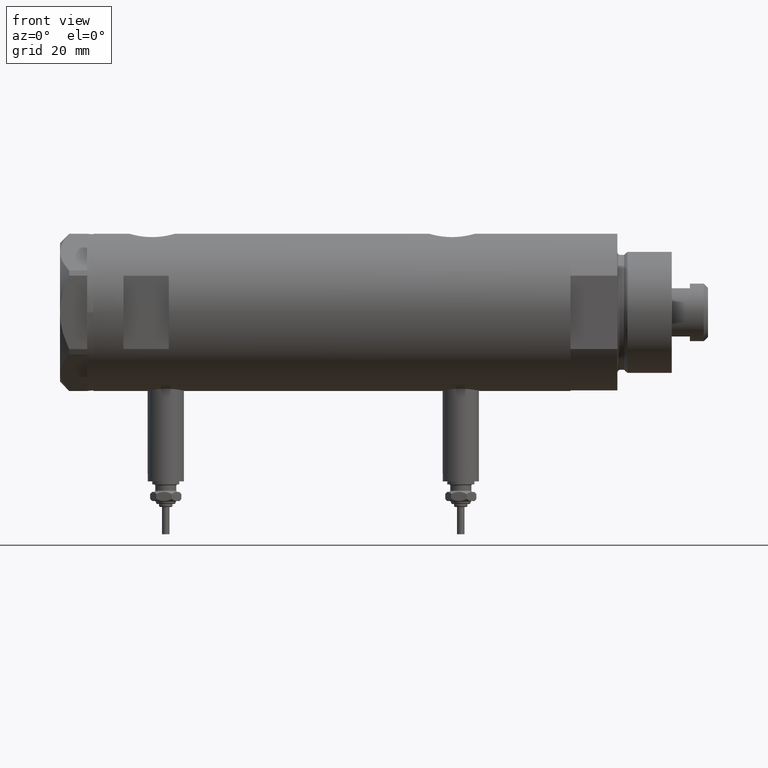
[diagram: clean part render]
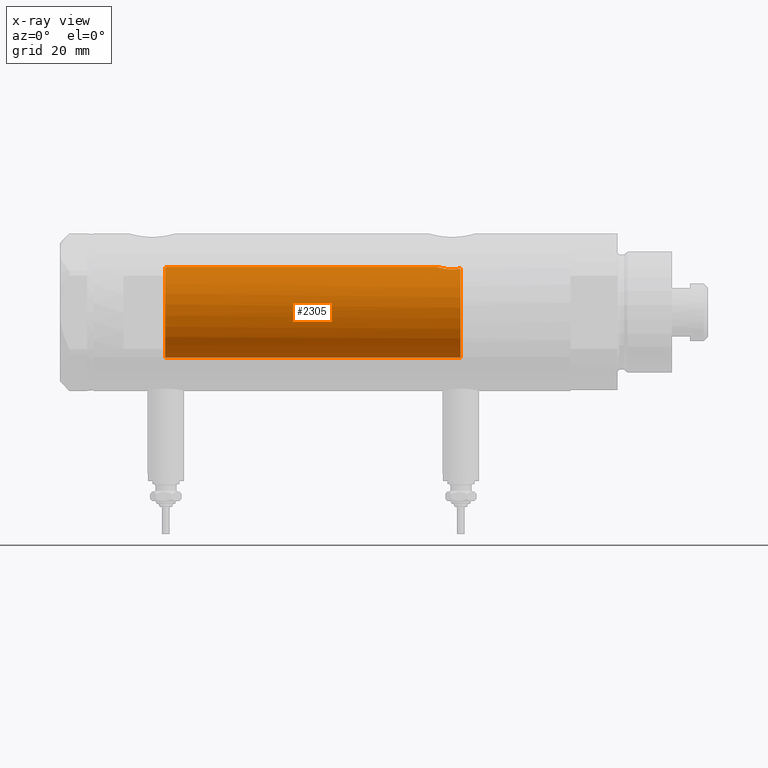
[diagram: x-ray — body ghosted, one internal face saturated and labeled with its STEP entity id]
A machine part, front view, then the same camera in x-ray: the body is ghosted and one INTERNAL B-rep face — a face not visible from any outside direction — is saturated and labeled: STEP entity #2305.
In plain terms, the highlighted cylindrical surface (partial cylindrical patch) has radius 15 mm, axis along (1, 0, -0).
Its self-contained STEP definition (entity closure, byte-faithful):
#74 = VECTOR ( 'NONE', #2897, 1000.000000000000000 ) ;
#135 = CARTESIAN_POINT ( 'NONE',  ( 14.20926245015526135, -4.806160851464706063, -38.96377327795616452 ) ) ;
#137 = CARTESIAN_POINT ( 'NONE',  ( 15.00000000000000000, 5.959273468635536151E-16, -34.88499999999999801 ) ) ;
#225 = DIRECTION ( 'NONE',  ( -0.000000000000000000, -0.000000000000000000, -1.000000000000000000 ) ) ;
#428 = EDGE_CURVE ( 'NONE', #4670, #3200, #2181, .T. ) ;
#495 = CARTESIAN_POINT ( 'NONE',  ( 14.23984499268011028, -4.714778477509579346, -38.53008258614764969 ) ) ;
#582 = ORIENTED_EDGE ( 'NONE', *, *, #6009, .F. ) ;
#586 = EDGE_CURVE ( 'NONE', #4252, #4744, #3920, .T. ) ;
#615 = ORIENTED_EDGE ( 'NONE', *, *, #2946, .T. ) ;
#619 = CARTESIAN_POINT ( 'NONE',  ( 14.39424372609267877, -4.221002267729138779, -42.17893131093288872 ) ) ;
#754 = AXIS2_PLACEMENT_3D ( 'NONE', #5443, #4474, #4569 ) ;
#765 = CARTESIAN_POINT ( 'NONE',  ( 14.87720562886504183, -1.924385875533401347, 54.97741675737692191 ) ) ;
#1026 = CARTESIAN_POINT ( 'NONE',  ( -15.00000000000000000, 0.000000000000000000, -42.55000000000000426 ) ) ;
#1114 = VERTEX_POINT ( 'NONE', #1026 ) ;
#1271 = CARTESIAN_POINT ( 'NONE',  ( 15.00000000000000000, 0.000000000000000000, 54.58500000000000085 ) ) ;
#1339 = CARTESIAN_POINT ( 'NONE',  ( 14.98404828787190723, -0.7909490205761879889, 54.63356230794191504 ) ) ;
#1573 = CARTESIAN_POINT ( 'NONE',  ( 14.23846660849503465, -4.718934182878722794, -40.95401121469808459 ) ) ;
#1609 = CARTESIAN_POINT ( 'NONE',  ( 14.19797987272029438, -4.839174951492910104, -40.29741451501411120 ) ) ;
#1727 = CARTESIAN_POINT ( 'NONE',  ( 14.85289483991917514, -2.102865829523695940, 55.05860377881607093 ) ) ;
#1831 = ORIENTED_EDGE ( 'NONE', *, *, #3499, .F. ) ;
#1858 = CARTESIAN_POINT ( 'NONE',  ( 14.92029983160078288, -1.555365312915176768, 54.83609703141411984 ) ) ;
#1872 = DIRECTION ( 'NONE',  ( -0.000000000000000000, -0.000000000000000000, -1.000000000000000000 ) ) ;
#1934 = CARTESIAN_POINT ( 'NONE',  ( 15.00000000000000000, 1.836970198721029589E-15, 78.95000000000000284 ) ) ;
#1991 = AXIS2_PLACEMENT_3D ( 'NONE', #2651, #225, #2175 ) ;
#2061 = CARTESIAN_POINT ( 'NONE',  ( -15.00000000000000000, 0.000000000000000000, 55.15000000000000568 ) ) ;
#2175 = DIRECTION ( 'NONE',  ( -1.000000000000000000, 0.000000000000000000, 0.000000000000000000 ) ) ;
#2181 = CIRCLE ( 'NONE', #754, 15.00000000000000000 ) ;
#2196 = CARTESIAN_POINT ( 'NONE',  ( 14.82638779339053947, -2.275571356824482638, 55.15000000000000568 ) ) ;
#2222 = CARTESIAN_POINT ( 'NONE',  ( 14.96064712090283777, -1.106639041422191827, -35.00738179736369915 ) ) ;
#2253 = CARTESIAN_POINT ( 'NONE',  ( 14.33594561531104006, -4.414979644548145288, -37.69453393419243525 ) ) ;
#2305 = ADVANCED_FACE ( 'NONE', ( #4077 ), #5093, .F. ) ;
#2446 = CARTESIAN_POINT ( 'NONE',  ( 14.25977760983849052, -4.654557688538888627, -38.31736805897653397 ) ) ;
#2537 = VERTEX_POINT ( 'NONE', #5942 ) ;
#2568 = CARTESIAN_POINT ( 'NONE',  ( 14.25856516724843992, -4.658255869285516937, -41.17044016644936733 ) ) ;
#2651 = CARTESIAN_POINT ( 'NONE',  ( 0.000000000000000000, 0.000000000000000000, 78.95000000000000284 ) ) ;
#2661 = CARTESIAN_POINT ( 'NONE',  ( 14.90017778876744892, -1.739641523727902372, -35.20130925695126223 ) ) ;
#2897 = DIRECTION ( 'NONE',  ( -0.000000000000000000, -0.000000000000000000, -1.000000000000000000 ) ) ;
#2946 = EDGE_CURVE ( 'NONE', #2537, #1114, #3745, .T. ) ;
#3045 = CARTESIAN_POINT ( 'NONE',  ( 14.19858338301463441, -4.837406781463696070, -39.18614104090498529 ) ) ;
#3117 = AXIS2_PLACEMENT_3D ( 'NONE', #6122, #3902, #5870 ) ;
#3200 = VERTEX_POINT ( 'NONE', #2196 ) ;
#3432 = EDGE_LOOP ( 'NONE', ( #582, #6090, #1831, #615, #6013, #5638 ) ) ;
#3499 = EDGE_CURVE ( 'NONE', #2537, #4744, #5018, .T. ) ;
#3530 = CARTESIAN_POINT ( 'NONE',  ( 14.20819413761015504, -4.809312895991456394, -40.51713251522166814 ) ) ;
#3598 = CARTESIAN_POINT ( 'NONE',  ( 14.92307637240703677, -1.532123959568890026, -35.12726557582075770 ) ) ;
#3669 = CARTESIAN_POINT ( 'NONE',  ( 14.49994286062941562, -3.853373987417223479, -36.74743896782912600 ) ) ;
#3745 = CIRCLE ( 'NONE', #3117, 15.00000000000000000 ) ;
#3902 = DIRECTION ( 'NONE',  ( 0.000000000000000000, 0.000000000000000000, -1.000000000000000000 ) ) ;
#3906 = LINE ( 'NONE', #6180, #74 ) ;
#3920 = LINE ( 'NONE', #1934, #4852 ) ;
#4077 = FACE_OUTER_BOUND ( 'NONE', #3432, .T. ) ;
#4116 = EDGE_CURVE ( 'NONE', #4670, #1114, #3906, .T. ) ;
#4158 = CARTESIAN_POINT ( 'NONE',  ( 14.30772250772359833, -4.505024017690383076, -37.90010806953218037 ) ) ;
#4192 = CARTESIAN_POINT ( 'NONE',  ( 14.81710879718117546, -2.343063746046468054, -35.48067662538952050 ) ) ;
#4220 = CARTESIAN_POINT ( 'NONE',  ( 14.97537530859971966, -0.8874117095427771496, -34.96137464055828303 ) ) ;
#4252 = VERTEX_POINT ( 'NONE', #4865 ) ;
#4474 = DIRECTION ( 'NONE',  ( 0.000000000000000000, 0.000000000000000000, 1.000000000000000000 ) ) ;
#4569 = DIRECTION ( 'NONE',  ( 1.000000000000000000, 0.000000000000000000, 0.000000000000000000 ) ) ;
#4571 = CARTESIAN_POINT ( 'NONE',  ( 14.42796883436190214, -4.108435602805831088, -37.10726922759031510 ) ) ;
#4605 = CARTESIAN_POINT ( 'NONE',  ( 15.00000000000000000, 5.959273468635536151E-16, -34.88499999999999801 ) ) ;
#4636 = CARTESIAN_POINT ( 'NONE',  ( 14.84733308118440220, -2.144376633039216440, -35.37751912952715827 ) ) ;
#4670 = VERTEX_POINT ( 'NONE', #2061 ) ;
#4743 = CARTESIAN_POINT ( 'NONE',  ( 14.82638779339053947, -2.275571356824482638, 55.15000000000000568 ) ) ;
#4744 = VERTEX_POINT ( 'NONE', #137 ) ;
#4852 = VECTOR ( 'NONE', #1872, 1000.000000000000000 ) ;
#4865 = CARTESIAN_POINT ( 'NONE',  ( 15.00000000000000000, 0.000000000000000000, 54.58500000000000085 ) ) ;
#4914 = CARTESIAN_POINT ( 'NONE',  ( 14.46277203719950855, -3.978470183374506863, -42.55000000000000426 ) ) ;
#5018 = B_SPLINE_CURVE_WITH_KNOTS ( 'NONE', 3,
 ( #4914, #5959, #619, #5866, #5388, #2568, #1573, #3530, #1609, #5481, #5513, #3045, #135, #495, #2446, #4158, #2253, #4571, #3669, #6086, #5036, #4192, #4636, #2661, #3598, #2222, #4220, #6151, #5167, #4605 ),
 .UNSPECIFIED., .F., .F.,
 ( 4, 2, 2, 2, 2, 2, 2, 2, 2, 2, 2, 2, 2, 2, 4 ),
 ( 0.004672505804584289359, 0.005337629501999303222, 0.006002753199414317953, 0.006667876896829330949, 0.007333000594244345680, 0.007998124291659358676, 0.008663247989074373406, 0.009328371686489388137, 0.009993495383904402868, 0.01132374277873441151, 0.01265399017356442016, 0.01331911387097942448, 0.01398423756839442880, 0.01464936126580943312, 0.01531448496322443745 ),
 .UNSPECIFIED. ) ;
#5036 = CARTESIAN_POINT ( 'NONE',  ( 14.72015646623405871, -2.909233045280601893, -35.82572079632733164 ) ) ;
#5093 = CYLINDRICAL_SURFACE ( 'NONE', #1991, 15.00000000000000000 ) ;
#5147 = CARTESIAN_POINT ( 'NONE',  ( 14.93900636919599911, -1.364886281976677607, 54.77622504971313333 ) ) ;
#5167 = CARTESIAN_POINT ( 'NONE',  ( 15.00000000000000000, -0.2216692655473431750, -34.88499999999999091 ) ) ;
#5179 = CARTESIAN_POINT ( 'NONE',  ( 15.00000000000000178, -0.3999014018875943210, 54.58500000000000796 ) ) ;
#5388 = CARTESIAN_POINT ( 'NONE',  ( 14.30602371879161439, -4.510400617436904014, -41.58665028800272268 ) ) ;
#5443 = CARTESIAN_POINT ( 'NONE',  ( 0.000000000000000000, 0.000000000000000000, 55.15000000000000568 ) ) ;
#5481 = CARTESIAN_POINT ( 'NONE',  ( 14.18781489734108270, -4.868896704194245473, -39.85545969036063241 ) ) ;
#5513 = CARTESIAN_POINT ( 'NONE',  ( 14.18786347641749757, -4.868757996482117711, -39.63322300400292875 ) ) ;
#5638 = ORIENTED_EDGE ( 'NONE', *, *, #428, .T. ) ;
#5866 = CARTESIAN_POINT ( 'NONE',  ( 14.33349657381506681, -4.422893686125041413, -41.78827841538883092 ) ) ;
#5870 = DIRECTION ( 'NONE',  ( -1.000000000000000000, 0.000000000000000000, 0.000000000000000000 ) ) ;
#5901 = B_SPLINE_CURVE_WITH_KNOTS ( 'NONE', 3,
 ( #1271, #5179, #1339, #5147, #1858, #765, #1727, #4743 ),
 .UNSPECIFIED., .F., .F.,
 ( 4, 2, 2, 4 ),
 ( 0.000000000000000000, 0.001182100180564266828, 0.001773150270846399808, 0.002364200361128533222 ),
 .UNSPECIFIED. ) ;
#5942 = CARTESIAN_POINT ( 'NONE',  ( 14.46277203719950855, -3.978470183374506863, -42.55000000000000426 ) ) ;
#5959 = CARTESIAN_POINT ( 'NONE',  ( 14.42775250319760083, -4.105775281508734054, -42.36911445102907692 ) ) ;
#6009 = EDGE_CURVE ( 'NONE', #4252, #3200, #5901, .T. ) ;
#6013 = ORIENTED_EDGE ( 'NONE', *, *, #4116, .F. ) ;
#6086 = CARTESIAN_POINT ( 'NONE',  ( 14.64727859494137263, -3.248701865452407578, -36.10174013696653361 ) ) ;
#6090 = ORIENTED_EDGE ( 'NONE', *, *, #586, .T. ) ;
#6122 = CARTESIAN_POINT ( 'NONE',  ( 0.000000000000000000, 0.000000000000000000, -42.55000000000000426 ) ) ;
#6151 = CARTESIAN_POINT ( 'NONE',  ( 14.99508877558421993, -0.4434836953032583184, -34.90007684727662252 ) ) ;
#6180 = CARTESIAN_POINT ( 'NONE',  ( -15.00000000000000000, 0.000000000000000000, 78.95000000000000284 ) ) ;